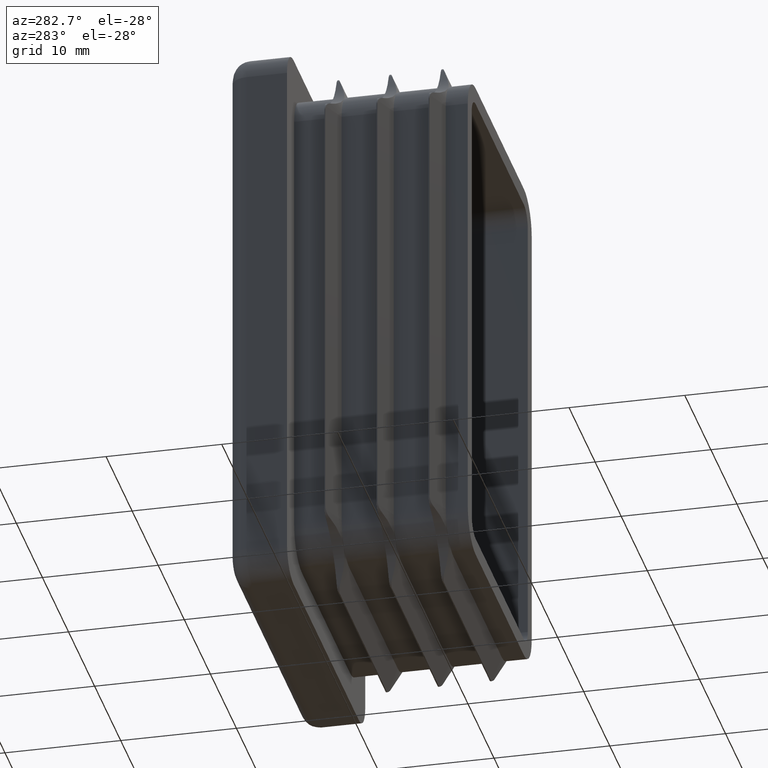
[diagram: clean part render]
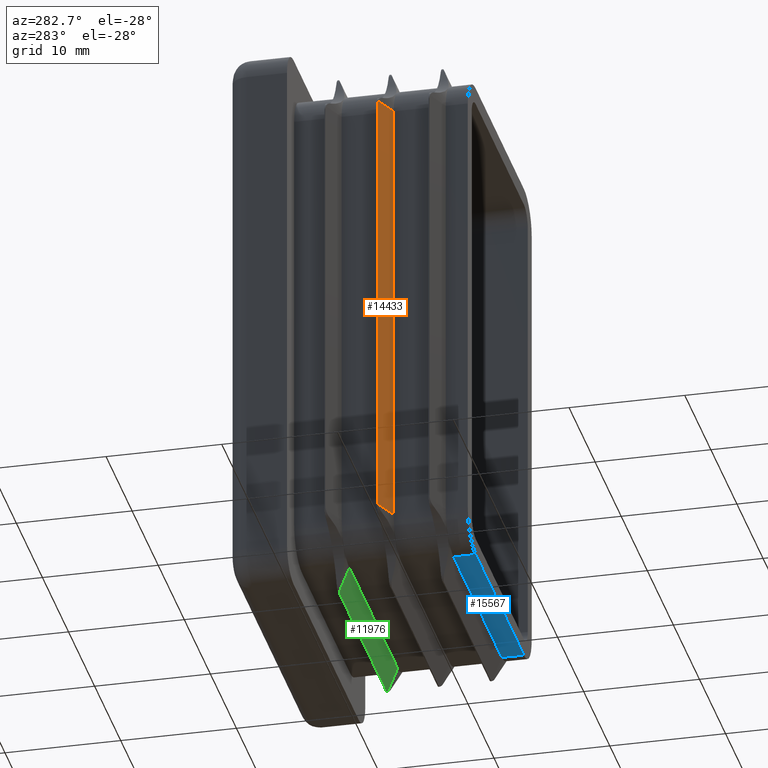
[diagram: same view with three faces highlighted in distinct colors, each labeled with its STEP entity id]
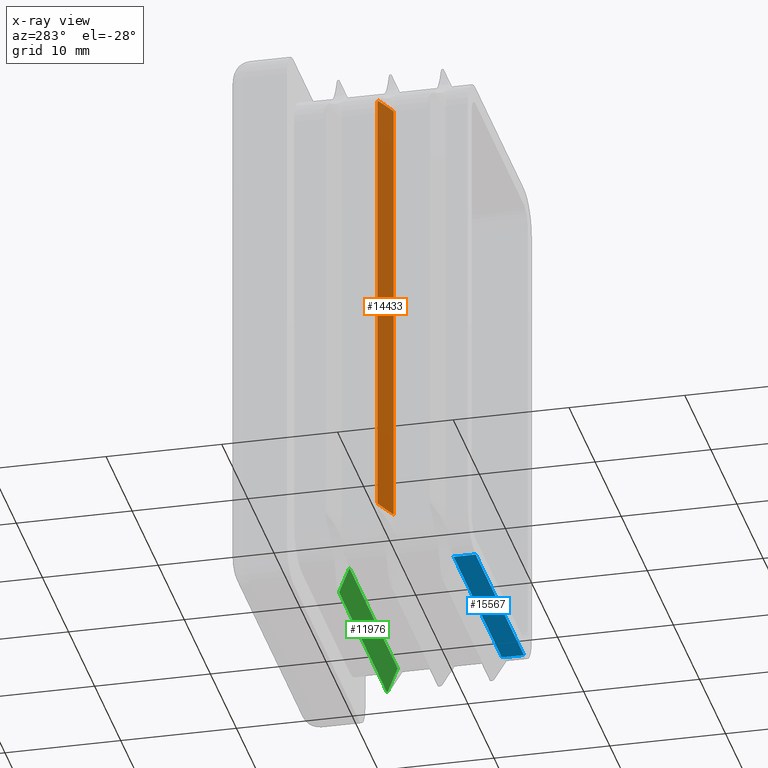
[diagram: x-ray of the same camera — body ghosted, the three highlighted faces saturated]
A machine part, auxiliary view with three faces highlighted in distinct colors.
The next image is the same camera in x-ray (body ghosted, the three faces saturated) — at least one of them is partly hidden behind the body in this view.
Their STEP definitions:

[orange] entity #14433 — the highlighted planar face has unit normal (0.3772, 0.9261, 0).
#1 = PLANE ( 'NONE',  #13253 ) ;
#1219 = VECTOR ( 'NONE', #19537, 1000.000000000000000 ) ;
#1725 = EDGE_CURVE ( 'NONE', #18446, #5339, #5034, .T. ) ;
#1785 =( BOUNDED_CURVE ( )  B_SPLINE_CURVE ( 3, ( #4187, #11966, #18190, #5828 ),
 .UNSPECIFIED., .F., .F. ) 
 B_SPLINE_CURVE_WITH_KNOTS ( ( 4, 4 ),
 ( 2.713623046955880191, 2.891379701795016910 ),
 .UNSPECIFIED. ) 
 CURVE ( )  GEOMETRIC_REPRESENTATION_ITEM ( )  RATIONAL_B_SPLINE_CURVE ( ( 1.000000000000000000, 0.9973686138443125238, 0.9973686138443125238, 1.000000000000000000 ) ) 
 REPRESENTATION_ITEM ( '' )  );
#1891 = EDGE_CURVE ( 'NONE', #4884, #5339, #1785, .T. ) ;
#2988 = EDGE_CURVE ( 'NONE', #17291, #18446, #7265, .T. ) ;
#3870 = ORIENTED_EDGE ( 'NONE', *, *, #2988, .F. ) ;
#4022 = VERTEX_POINT ( 'NONE', #7363 ) ;
#4187 = CARTESIAN_POINT ( 'NONE',  ( -14.40981028720145574, -7.720356254773426130, 19.25000000000000355 ) ) ;
#4783 = VECTOR ( 'NONE', #5875, 1000.000000000000227 ) ;
#4824 = CARTESIAN_POINT ( 'NONE',  ( -14.46885971462463161, -7.696306707551703319, -19.08258589888744439 ) ) ;
#4884 = VERTEX_POINT ( 'NONE', #9992 ) ;
#5034 = LINE ( 'NONE', #14419, #5545 ) ;
#5339 = VERTEX_POINT ( 'NONE', #5432 ) ;
#5432 = CARTESIAN_POINT ( 'NONE',  ( -14.46885971462464049, -7.696306707551702431, 19.08258589888740175 ) ) ;
#5545 = VECTOR ( 'NONE', #16044, 1000.000000000000000 ) ;
#5569 = ORIENTED_EDGE ( 'NONE', *, *, #14700, .T. ) ;
#5714 = ORIENTED_EDGE ( 'NONE', *, *, #16285, .F. ) ;
#5828 = CARTESIAN_POINT ( 'NONE',  ( -14.46885971462464049, -7.696306707551702431, 19.08258589888740175 ) ) ;
#5829 = LINE ( 'NONE', #10173, #1219 ) ;
#5875 = DIRECTION ( 'NONE',  ( -0.9261341510340120875, 0.3771942924919590712, 1.669180938911741351E-16 ) ) ;
#6389 = EDGE_LOOP ( 'NONE', ( #19900, #6575, #15432, #3870, #5714, #5569 ) ) ;
#6575 = ORIENTED_EDGE ( 'NONE', *, *, #1891, .T. ) ;
#6585 = CARTESIAN_POINT ( 'NONE',  ( -14.40981028720145574, -7.720356254773420801, -19.25000000000000355 ) ) ;
#6773 = CARTESIAN_POINT ( 'NONE',  ( -14.40981028720145574, -7.720356254773420801, -19.25000000000000355 ) ) ;
#6817 = FACE_OUTER_BOUND ( 'NONE', #6389, .T. ) ;
#7265 =( BOUNDED_CURVE ( )  B_SPLINE_CURVE ( 3, ( #6773, #14406, #11239, #19046 ),
 .UNSPECIFIED., .F., .F. ) 
 B_SPLINE_CURVE_WITH_KNOTS ( ( 4, 4 ),
 ( 2.713623046955880636, 2.891379701794974277 ),
 .UNSPECIFIED. ) 
 CURVE ( )  GEOMETRIC_REPRESENTATION_ITEM ( )  RATIONAL_B_SPLINE_CURVE ( ( 1.000000000000000000, 0.9973686138443138560, 0.9973686138443138560, 1.000000000000000000 ) ) 
 REPRESENTATION_ITEM ( '' )  );
#7363 = CARTESIAN_POINT ( 'NONE',  ( -12.24999999999998934, -8.600000000000015632, -19.25000000000000355 ) ) ;
#7610 = DIRECTION ( 'NONE',  ( -0.9261341510340120875, 0.3771942924919590157, 0.000000000000000000 ) ) ;
#9226 = CARTESIAN_POINT ( 'NONE',  ( -14.46885971462463338, -7.696306707551700654, -19.25000000000000355 ) ) ;
#9446 = VECTOR ( 'NONE', #10781, 1000.000000000000227 ) ;
#9855 = EDGE_CURVE ( 'NONE', #18350, #4884, #17842, .T. ) ;
#9992 = CARTESIAN_POINT ( 'NONE',  ( -14.40981028720145574, -7.720356254773426130, 19.25000000000000355 ) ) ;
#10173 = CARTESIAN_POINT ( 'NONE',  ( -12.25000000000003197, -8.599999999999999645, -19.25000000000000355 ) ) ;
#10781 = DIRECTION ( 'NONE',  ( -0.9261341510340120875, 0.3771942924919590712, 4.172952347279352022E-16 ) ) ;
#11239 = CARTESIAN_POINT ( 'NONE',  ( -14.45416890698573553, -7.702289953917580867, -19.14006869561532298 ) ) ;
#11966 = CARTESIAN_POINT ( 'NONE',  ( -14.43443383391328361, -7.710327619861041981, 19.19602062712411694 ) ) ;
#13253 = AXIS2_PLACEMENT_3D ( 'NONE', #13888, #13822, #7610 ) ;
#13759 = CARTESIAN_POINT ( 'NONE',  ( -12.25000000000000178, -8.600000000000017408, 19.25000000000000000 ) ) ;
#13822 = DIRECTION ( 'NONE',  ( 0.3771942924919590712, 0.9261341510340121985, 1.019731627309501662E-16 ) ) ;
#13888 = CARTESIAN_POINT ( 'NONE',  ( -14.46885971462463516, -7.696306707551700654, -19.25000000000000355 ) ) ;
#14406 = CARTESIAN_POINT ( 'NONE',  ( -14.43443383391327650, -7.710327619861041093, -19.19602062712413115 ) ) ;
#14419 = CARTESIAN_POINT ( 'NONE',  ( -14.46885971462463516, -7.696306707551700654, -19.25000000000000355 ) ) ;
#14433 = ADVANCED_FACE ( 'NONE', ( #6817 ), #1, .F. ) ;
#14700 = EDGE_CURVE ( 'NONE', #4022, #18350, #5829, .T. ) ;
#15432 = ORIENTED_EDGE ( 'NONE', *, *, #1725, .F. ) ;
#16044 = DIRECTION ( 'NONE',  ( -2.703465157366451974E-16, 0.000000000000000000, 1.000000000000000000 ) ) ;
#16285 = EDGE_CURVE ( 'NONE', #4022, #17291, #17391, .T. ) ;
#16630 = CARTESIAN_POINT ( 'NONE',  ( -14.46885971462464404, -7.696306707551700654, 19.25000000000000355 ) ) ;
#17291 = VERTEX_POINT ( 'NONE', #6585 ) ;
#17391 = LINE ( 'NONE', #9226, #9446 ) ;
#17842 = LINE ( 'NONE', #16630, #4783 ) ;
#18190 = CARTESIAN_POINT ( 'NONE',  ( -14.45416890698574264, -7.702289953917579979, 19.14006869561529456 ) ) ;
#18350 = VERTEX_POINT ( 'NONE', #13759 ) ;
#18446 = VERTEX_POINT ( 'NONE', #4824 ) ;
#19046 = CARTESIAN_POINT ( 'NONE',  ( -14.46885971462463161, -7.696306707551703319, -19.08258589888744439 ) ) ;
#19537 = DIRECTION ( 'NONE',  ( -2.703465157366451974E-16, 0.000000000000000000, 1.000000000000000000 ) ) ;
#19900 = ORIENTED_EDGE ( 'NONE', *, *, #9855, .T. ) ;

[blue] entity #15567 — the highlighted planar face has unit normal (-0, 0, 1).
#211 = CARTESIAN_POINT ( 'NONE',  ( 9.250000000000008882, -15.00000000000000000, -22.25000000000000000 ) ) ;
#494 = DIRECTION ( 'NONE',  ( -0.000000000000000000, 1.000000000000000000, -0.000000000000000000 ) ) ;
#499 = LINE ( 'NONE', #5098, #6807 ) ;
#648 = PLANE ( 'NONE',  #3392 ) ;
#768 = CARTESIAN_POINT ( 'NONE',  ( 9.250000000000008882, -13.10000000000000142, -22.25000000000008527 ) ) ;
#996 = EDGE_CURVE ( 'NONE', #17594, #5107, #499, .T. ) ;
#1403 = VECTOR ( 'NONE', #19594, 1000.000000000000000 ) ;
#3392 = AXIS2_PLACEMENT_3D ( 'NONE', #12880, #9929, #17476 ) ;
#4277 = EDGE_LOOP ( 'NONE', ( #10759, #8067, #15851, #19120 ) ) ;
#5098 = CARTESIAN_POINT ( 'NONE',  ( -9.249999999999992895, -15.00000000000000000, -22.25000000000000000 ) ) ;
#5107 = VERTEX_POINT ( 'NONE', #9235 ) ;
#5365 = EDGE_CURVE ( 'NONE', #19030, #5107, #16806, .T. ) ;
#5702 = CARTESIAN_POINT ( 'NONE',  ( -9.249999999999992895, -15.00000000000000000, -22.25000000000000000 ) ) ;
#6756 = LINE ( 'NONE', #16241, #1403 ) ;
#6807 = VECTOR ( 'NONE', #494, 1000.000000000000000 ) ;
#6977 = CARTESIAN_POINT ( 'NONE',  ( 9.250000000000008882, -13.10000000000003517, -22.25000000000000000 ) ) ;
#7870 = DIRECTION ( 'NONE',  ( -0.000000000000000000, 1.000000000000000000, -0.000000000000000000 ) ) ;
#8067 = ORIENTED_EDGE ( 'NONE', *, *, #17686, .F. ) ;
#8991 = VERTEX_POINT ( 'NONE', #211 ) ;
#9235 = CARTESIAN_POINT ( 'NONE',  ( -9.249999999999994671, -13.10000000000000142, -22.25000000000008527 ) ) ;
#9929 = DIRECTION ( 'NONE',  ( -0.000000000000000000, 0.000000000000000000, 1.000000000000000000 ) ) ;
#10660 = FACE_OUTER_BOUND ( 'NONE', #4277, .T. ) ;
#10759 = ORIENTED_EDGE ( 'NONE', *, *, #5365, .F. ) ;
#12633 = CARTESIAN_POINT ( 'NONE',  ( 9.250000000000008882, -15.00000000000000000, -22.25000000000000000 ) ) ;
#12880 = CARTESIAN_POINT ( 'NONE',  ( -9.249999999999992895, -15.00000000000000000, -22.25000000000000000 ) ) ;
#13062 = DIRECTION ( 'NONE',  ( -1.000000000000000000, 0.000000000000000000, 0.000000000000000000 ) ) ;
#13908 = VECTOR ( 'NONE', #13062, 1000.000000000000000 ) ;
#15567 = ADVANCED_FACE ( 'NONE', ( #10660 ), #648, .F. ) ;
#15851 = ORIENTED_EDGE ( 'NONE', *, *, #16400, .F. ) ;
#16241 = CARTESIAN_POINT ( 'NONE',  ( -9.249999999999992895, -15.00000000000000000, -22.25000000000000000 ) ) ;
#16400 = EDGE_CURVE ( 'NONE', #17594, #8991, #6756, .T. ) ;
#16806 = LINE ( 'NONE', #768, #13908 ) ;
#17476 = DIRECTION ( 'NONE',  ( 1.000000000000000000, 0.000000000000000000, 0.000000000000000000 ) ) ;
#17594 = VERTEX_POINT ( 'NONE', #5702 ) ;
#17686 = EDGE_CURVE ( 'NONE', #8991, #19030, #18126, .T. ) ;
#17869 = VECTOR ( 'NONE', #7870, 1000.000000000000000 ) ;
#18126 = LINE ( 'NONE', #12633, #17869 ) ;
#19030 = VERTEX_POINT ( 'NONE', #6977 ) ;
#19120 = ORIENTED_EDGE ( 'NONE', *, *, #996, .T. ) ;
#19594 = DIRECTION ( 'NONE',  ( 1.000000000000000000, 0.000000000000000000, 0.000000000000000000 ) ) ;

[green] entity #11976 — the highlighted planar face has unit normal (0, 0.9261, 0.3772).
#53 = DIRECTION ( 'NONE',  ( -4.172952347279351529E-16, 0.3771942924919594042, -0.9261341510340119765 ) ) ;
#161 = ORIENTED_EDGE ( 'NONE', *, *, #12204, .T. ) ;
#462 = VERTEX_POINT ( 'NONE', #10622 ) ;
#560 = EDGE_CURVE ( 'NONE', #12081, #19595, #9949, .T. ) ;
#1072 = DIRECTION ( 'NONE',  ( -1.000000000000000000, 0.000000000000000000, 0.000000000000000000 ) ) ;
#1767 = CARTESIAN_POINT ( 'NONE',  ( 9.140068695615383376, -3.202289953917576870, -24.45416890698570000 ) ) ;
#1768 = CARTESIAN_POINT ( 'NONE',  ( 9.082585898887540310, -3.196306707551701098, -24.46885971462459608 ) ) ;
#2030 =( BOUNDED_CURVE ( )  B_SPLINE_CURVE ( 3, ( #13569, #5920, #15186, #2850 ),
 .UNSPECIFIED., .F., .T. ) 
 B_SPLINE_CURVE_WITH_KNOTS ( ( 4, 4 ),
 ( 3.391805605384698108, 3.569562260223682504 ),
 .UNSPECIFIED. ) 
 CURVE ( )  GEOMETRIC_REPRESENTATION_ITEM ( )  RATIONAL_B_SPLINE_CURVE ( ( 1.000000000000000000, 0.9973686138443170757, 0.9973686138443170757, 1.000000000000000000 ) ) 
 REPRESENTATION_ITEM ( '' )  );
#2061 = CARTESIAN_POINT ( 'NONE',  ( 9.250000000000007105, -3.220356254773408811, -24.40981028720144863 ) ) ;
#2602 = AXIS2_PLACEMENT_3D ( 'NONE', #7344, #7207, #19753 ) ;
#2850 = CARTESIAN_POINT ( 'NONE',  ( -9.249999999999996447, -3.220356254773407034, -24.40981028720145218 ) ) ;
#3245 = CARTESIAN_POINT ( 'NONE',  ( 9.250000000000007105, -3.220356254773408811, -24.40981028720144863 ) ) ;
#3736 = ORIENTED_EDGE ( 'NONE', *, *, #12477, .F. ) ;
#4240 = EDGE_CURVE ( 'NONE', #12081, #15058, #19142, .T. ) ;
#4489 = FACE_OUTER_BOUND ( 'NONE', #4967, .T. ) ;
#4815 = CARTESIAN_POINT ( 'NONE',  ( 9.082585898887540310, -3.196306707551701098, -24.46885971462459608 ) ) ;
#4967 = EDGE_LOOP ( 'NONE', ( #11762, #19543, #6897, #3736, #161, #14882 ) ) ;
#5396 = CARTESIAN_POINT ( 'NONE',  ( -9.249999999999996447, -3.196306707551699766, -24.46885971462459608 ) ) ;
#5920 = CARTESIAN_POINT ( 'NONE',  ( -9.140068695615381600, -3.202289953917577314, -24.45416890698570356 ) ) ;
#6129 = LINE ( 'NONE', #12368, #10493 ) ;
#6897 = ORIENTED_EDGE ( 'NONE', *, *, #4240, .T. ) ;
#7207 = DIRECTION ( 'NONE',  ( 0.000000000000000000, 0.9261341510340120875, 0.3771942924919594597 ) ) ;
#7344 = CARTESIAN_POINT ( 'NONE',  ( 9.250000000000007105, -3.196306707551699766, -24.46885971462459608 ) ) ;
#7978 = EDGE_CURVE ( 'NONE', #462, #8661, #20031, .T. ) ;
#8661 = VERTEX_POINT ( 'NONE', #17566 ) ;
#9369 = CARTESIAN_POINT ( 'NONE',  ( 9.196020627124164903, -3.210327619861034876, -24.43443383391325341 ) ) ;
#9949 = LINE ( 'NONE', #10340, #14810 ) ;
#10340 = CARTESIAN_POINT ( 'NONE',  ( 9.250000000000007105, -3.196306707551700654, -24.46885971462459608 ) ) ;
#10493 = VECTOR ( 'NONE', #53, 1000.000000000000227 ) ;
#10622 = CARTESIAN_POINT ( 'NONE',  ( -9.249999999999994671, -4.100000000000000533, -22.24999999999999289 ) ) ;
#11762 = ORIENTED_EDGE ( 'NONE', *, *, #18332, .F. ) ;
#11835 = VECTOR ( 'NONE', #13019, 1000.000000000000227 ) ;
#11876 = PLANE ( 'NONE',  #2602 ) ;
#11967 = VERTEX_POINT ( 'NONE', #18009 ) ;
#11976 = ADVANCED_FACE ( 'NONE', ( #4489 ), #11876, .F. ) ;
#12081 = VERTEX_POINT ( 'NONE', #1768 ) ;
#12204 = EDGE_CURVE ( 'NONE', #11967, #462, #20008, .T. ) ;
#12368 = CARTESIAN_POINT ( 'NONE',  ( 9.250000000000007105, -3.196306707551699766, -24.46885971462459608 ) ) ;
#12477 = EDGE_CURVE ( 'NONE', #11967, #15058, #6129, .T. ) ;
#13019 = DIRECTION ( 'NONE',  ( -4.172952347279351529E-16, 0.3771942924919594042, -0.9261341510340119765 ) ) ;
#13569 = CARTESIAN_POINT ( 'NONE',  ( -9.082585898887540310, -3.196306707551701543, -24.46885971462459608 ) ) ;
#14810 = VECTOR ( 'NONE', #1072, 1000.000000000000000 ) ;
#14882 = ORIENTED_EDGE ( 'NONE', *, *, #7978, .T. ) ;
#15058 = VERTEX_POINT ( 'NONE', #2061 ) ;
#15186 = CARTESIAN_POINT ( 'NONE',  ( -9.196020627124159574, -3.210327619861033988, -24.43443383391326051 ) ) ;
#16315 = DIRECTION ( 'NONE',  ( -1.000000000000000000, 0.000000000000000000, 0.000000000000000000 ) ) ;
#16449 = CARTESIAN_POINT ( 'NONE',  ( 9.250000000000008882, -4.100000000000000533, -22.24999999999999289 ) ) ;
#17256 = CARTESIAN_POINT ( 'NONE',  ( -9.082585898887540310, -3.196306707551701543, -24.46885971462459608 ) ) ;
#17566 = CARTESIAN_POINT ( 'NONE',  ( -9.249999999999996447, -3.220356254773407034, -24.40981028720145218 ) ) ;
#18009 = CARTESIAN_POINT ( 'NONE',  ( 9.250000000000008882, -4.099999999999997868, -22.25000000000000000 ) ) ;
#18332 = EDGE_CURVE ( 'NONE', #19595, #8661, #2030, .T. ) ;
#18566 = VECTOR ( 'NONE', #16315, 1000.000000000000000 ) ;
#19142 =( BOUNDED_CURVE ( )  B_SPLINE_CURVE ( 3, ( #4815, #1767, #9369, #3245 ),
 .UNSPECIFIED., .F., .F. ) 
 B_SPLINE_CURVE_WITH_KNOTS ( ( 4, 4 ),
 ( 3.391805605384698108, 3.569562260223693606 ),
 .UNSPECIFIED. ) 
 CURVE ( )  GEOMETRIC_REPRESENTATION_ITEM ( )  RATIONAL_B_SPLINE_CURVE ( ( 1.000000000000000000, 0.9973686138443167426, 0.9973686138443167426, 1.000000000000000000 ) ) 
 REPRESENTATION_ITEM ( '' )  );
#19543 = ORIENTED_EDGE ( 'NONE', *, *, #560, .F. ) ;
#19595 = VERTEX_POINT ( 'NONE', #17256 ) ;
#19753 = DIRECTION ( 'NONE',  ( 0.000000000000000000, -0.3771942924919594042, 0.9261341510340119765 ) ) ;
#20008 = LINE ( 'NONE', #16449, #18566 ) ;
#20031 = LINE ( 'NONE', #5396, #11835 ) ;